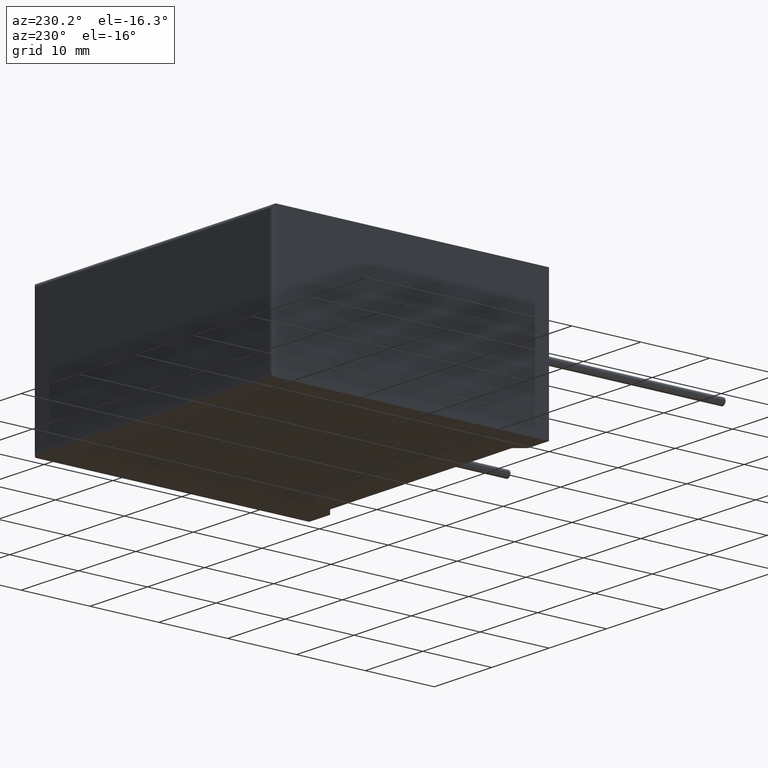
[diagram: clean part render]
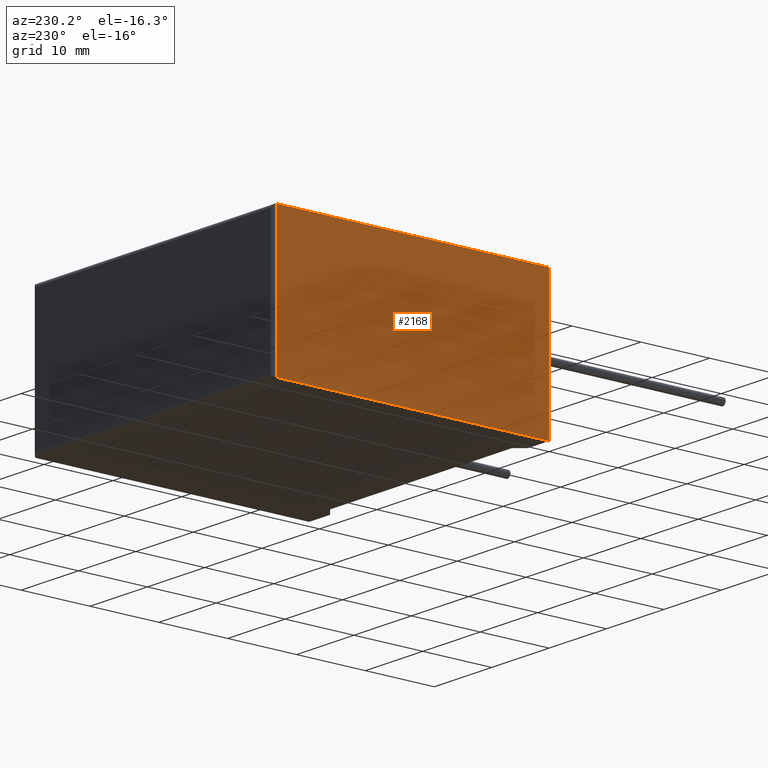
[diagram: same view with one face highlighted and labeled with its STEP entity id]
A machine part, auxiliary view. The second image highlights one B-rep face of the part: STEP entity #2168.
In plain terms, the highlighted planar face has unit normal (1, 0, 0).
Its self-contained STEP definition (entity closure, byte-faithful):
#23 = EDGE_CURVE ( 'NONE', #2923, #2153, #2343, .T. ) ;
#89 = VERTEX_POINT ( 'NONE', #1995 ) ;
#114 = VECTOR ( 'NONE', #2809, 1000.000000000000000 ) ;
#153 = ORIENTED_EDGE ( 'NONE', *, *, #1054, .F. ) ;
#199 = CARTESIAN_POINT ( 'NONE',  ( 0.000000000000000000, 0.000000000000000000, 20.19999999999999929 ) ) ;
#298 = DIRECTION ( 'NONE',  ( 0.000000000000000000, 0.000000000000000000, -1.000000000000000000 ) ) ;
#463 = FACE_OUTER_BOUND ( 'NONE', #627, .T. ) ;
#467 = CARTESIAN_POINT ( 'NONE',  ( 0.000000000000000000, 39.60000000000000142, 20.19999999999999929 ) ) ;
#627 = EDGE_LOOP ( 'NONE', ( #1128, #2138, #2379, #153 ) ) ;
#728 = VERTEX_POINT ( 'NONE', #467 ) ;
#732 = CARTESIAN_POINT ( 'NONE',  ( 0.000000000000000000, 0.000000000000000000, 20.19999999999999929 ) ) ;
#741 = EDGE_CURVE ( 'NONE', #728, #89, #2601, .T. ) ;
#884 = LINE ( 'NONE', #199, #2324 ) ;
#993 = PLANE ( 'NONE',  #1658 ) ;
#1054 = EDGE_CURVE ( 'NONE', #89, #2153, #884, .T. ) ;
#1108 = VECTOR ( 'NONE', #2127, 1000.000000000000000 ) ;
#1128 = ORIENTED_EDGE ( 'NONE', *, *, #741, .F. ) ;
#1168 = CARTESIAN_POINT ( 'NONE',  ( 0.000000000000000000, 0.000000000000000000, 0.000000000000000000 ) ) ;
#1368 = LINE ( 'NONE', #1998, #1644 ) ;
#1375 = EDGE_CURVE ( 'NONE', #728, #2923, #1368, .T. ) ;
#1432 = CARTESIAN_POINT ( 'NONE',  ( 0.000000000000000000, 0.000000000000000000, 0.000000000000000000 ) ) ;
#1644 = VECTOR ( 'NONE', #2229, 1000.000000000000000 ) ;
#1658 = AXIS2_PLACEMENT_3D ( 'NONE', #2615, #2570, #298 ) ;
#1995 = CARTESIAN_POINT ( 'NONE',  ( 0.000000000000000000, 0.000000000000000000, 20.19999999999999929 ) ) ;
#1998 = CARTESIAN_POINT ( 'NONE',  ( 0.000000000000000000, 39.60000000000000142, 20.19999999999999929 ) ) ;
#2127 = DIRECTION ( 'NONE',  ( -0.000000000000000000, -1.000000000000000000, -0.000000000000000000 ) ) ;
#2138 = ORIENTED_EDGE ( 'NONE', *, *, #1375, .T. ) ;
#2153 = VERTEX_POINT ( 'NONE', #1168 ) ;
#2168 = ADVANCED_FACE ( 'NONE', ( #463 ), #993, .F. ) ;
#2229 = DIRECTION ( 'NONE',  ( 0.000000000000000000, 0.000000000000000000, -1.000000000000000000 ) ) ;
#2324 = VECTOR ( 'NONE', #3016, 1000.000000000000000 ) ;
#2343 = LINE ( 'NONE', #1432, #1108 ) ;
#2379 = ORIENTED_EDGE ( 'NONE', *, *, #23, .T. ) ;
#2570 = DIRECTION ( 'NONE',  ( 1.000000000000000000, 0.000000000000000000, 0.000000000000000000 ) ) ;
#2601 = LINE ( 'NONE', #732, #114 ) ;
#2615 = CARTESIAN_POINT ( 'NONE',  ( 0.000000000000000000, 0.000000000000000000, 20.19999999999999929 ) ) ;
#2809 = DIRECTION ( 'NONE',  ( -0.000000000000000000, -1.000000000000000000, -0.000000000000000000 ) ) ;
#2923 = VERTEX_POINT ( 'NONE', #2986 ) ;
#2986 = CARTESIAN_POINT ( 'NONE',  ( 0.000000000000000000, 39.60000000000000142, 0.000000000000000000 ) ) ;
#3016 = DIRECTION ( 'NONE',  ( -0.000000000000000000, -0.000000000000000000, -1.000000000000000000 ) ) ;